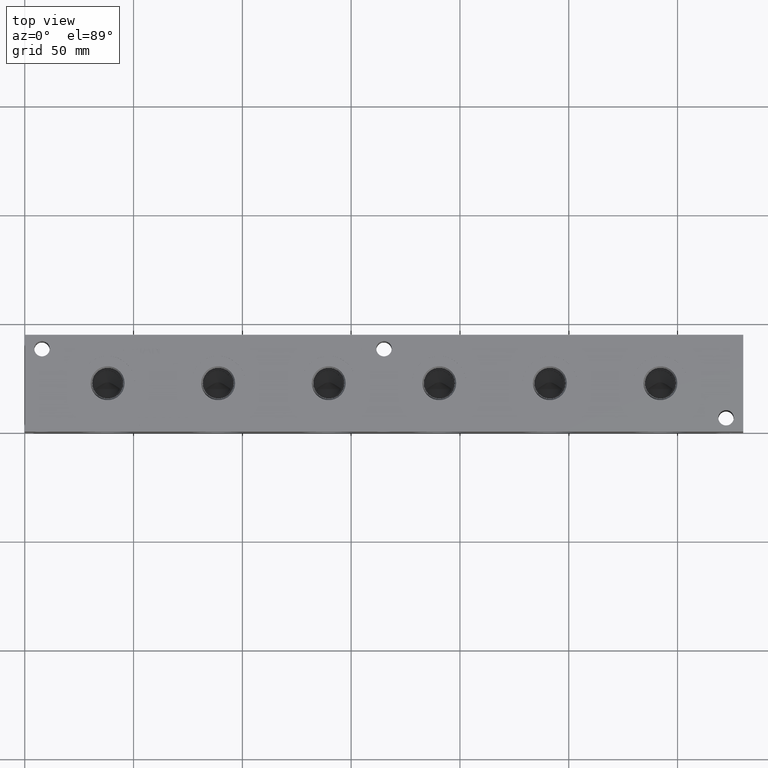
[diagram: clean part render]
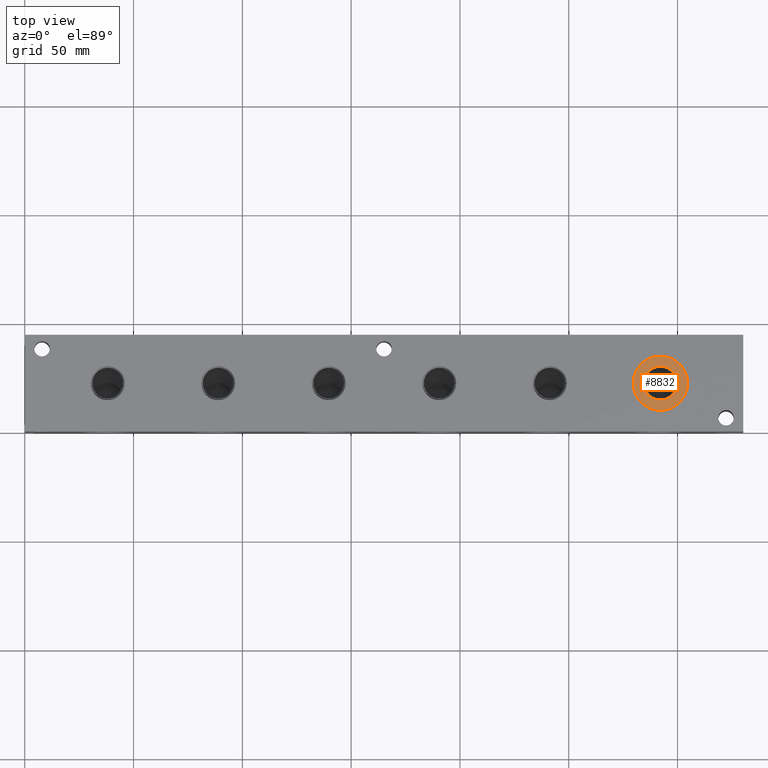
[diagram: same view with one face highlighted and labeled with its STEP entity id]
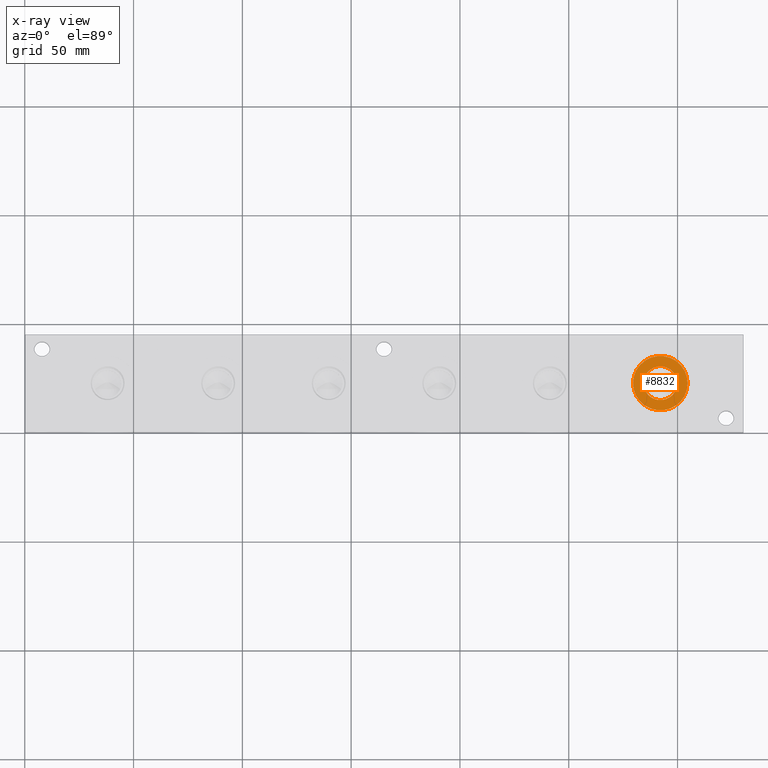
[diagram: x-ray of the same camera — body ghosted, the highlighted face saturated]
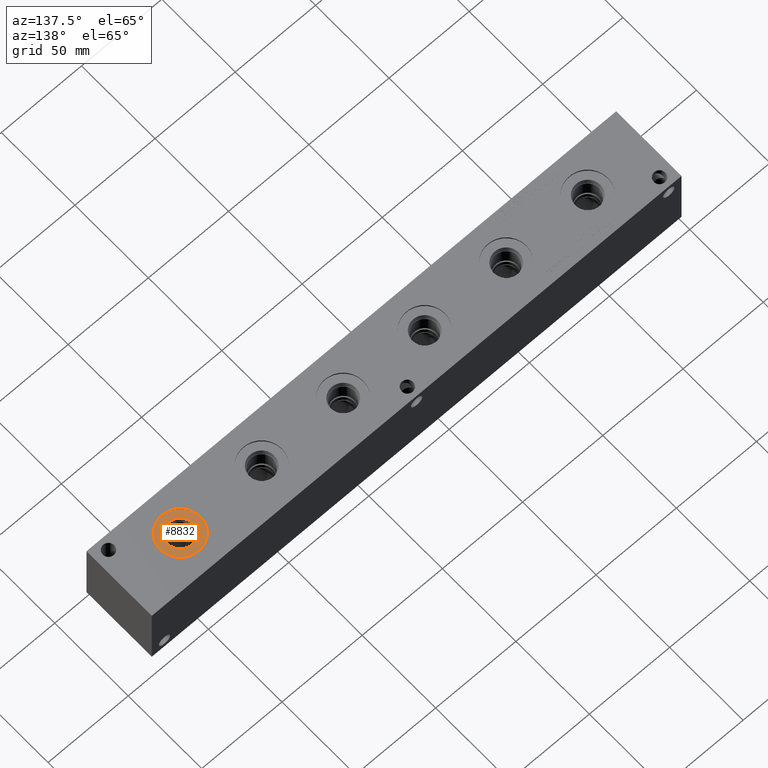
[diagram: same view with one face highlighted and labeled with its STEP entity id]
A machine part, top view. The second image highlights one B-rep face of the part: STEP entity #8832.
The next image is the same camera in x-ray: the body ghosted, the highlighted face saturated — about 0% of this face is hidden behind the body in this view.
A second angle (auxiliary view) of the same face is appended — the face is thin or edge-on in the first view.
In plain terms, the highlighted planar face has unit normal (0, 0, -1).
Its self-contained STEP definition (entity closure, byte-faithful):
#252=CIRCLE('',#9272,12.5095);
#253=CIRCLE('',#9273,12.5095);
#254=CIRCLE('',#9275,7.79779999999999);
#255=CIRCLE('',#9276,7.79779999999999);
#442=FACE_BOUND('',#1775,.T.);
#1258=FACE_OUTER_BOUND('',#1774,.T.);
#1774=EDGE_LOOP('',(#7392,#7393));
#1775=EDGE_LOOP('',(#7394,#7395));
#4005=VERTEX_POINT('',#15240);
#4006=VERTEX_POINT('',#15242);
#4007=VERTEX_POINT('',#15246);
#4008=VERTEX_POINT('',#15247);
#5164=EDGE_CURVE('',#4005,#4006,#252,.T.);
#5165=EDGE_CURVE('',#4006,#4005,#253,.T.);
#5166=EDGE_CURVE('',#4007,#4008,#254,.T.);
#5167=EDGE_CURVE('',#4008,#4007,#255,.T.);
#7392=ORIENTED_EDGE('',*,*,#5165,.F.);
#7393=ORIENTED_EDGE('',*,*,#5164,.F.);
#7394=ORIENTED_EDGE('',*,*,#5166,.T.);
#7395=ORIENTED_EDGE('',*,*,#5167,.T.);
#8140=PLANE('',#9274);
#8832=ADVANCED_FACE('',(#1258,#442),#8140,.F.);
#9272=AXIS2_PLACEMENT_3D('',#15243,#10827,#10828);
#9273=AXIS2_PLACEMENT_3D('',#15244,#10829,#10830);
#9274=AXIS2_PLACEMENT_3D('',#15245,#10831,#10832);
#9275=AXIS2_PLACEMENT_3D('',#15248,#10833,#10834);
#9276=AXIS2_PLACEMENT_3D('',#15249,#10835,#10836);
#10827=DIRECTION('center_axis',(0.,0.,-1.));
#10828=DIRECTION('ref_axis',(1.,0.,0.));
#10829=DIRECTION('center_axis',(0.,0.,-1.));
#10830=DIRECTION('ref_axis',(1.,0.,0.));
#10831=DIRECTION('center_axis',(0.,0.,-1.));
#10832=DIRECTION('ref_axis',(-1.,0.,0.));
#10833=DIRECTION('center_axis',(0.,0.,-1.));
#10834=DIRECTION('ref_axis',(1.,0.,0.));
#10835=DIRECTION('center_axis',(0.,0.,-1.));
#10836=DIRECTION('ref_axis',(1.,0.,0.));
#15240=CARTESIAN_POINT('',(279.5905,22.225,43.6626));
#15242=CARTESIAN_POINT('',(304.6095,22.225,43.6626));
#15243=CARTESIAN_POINT('Origin',(292.1,22.225,43.6626));
#15244=CARTESIAN_POINT('Origin',(292.1,22.225,43.6626));
#15245=CARTESIAN_POINT('Origin',(299.8978,22.225,43.6626));
#15246=CARTESIAN_POINT('',(299.8978,22.225,43.6626));
#15247=CARTESIAN_POINT('',(284.3022,22.225,43.6626));
#15248=CARTESIAN_POINT('Origin',(292.1,22.225,43.6626));
#15249=CARTESIAN_POINT('Origin',(292.1,22.225,43.6626));